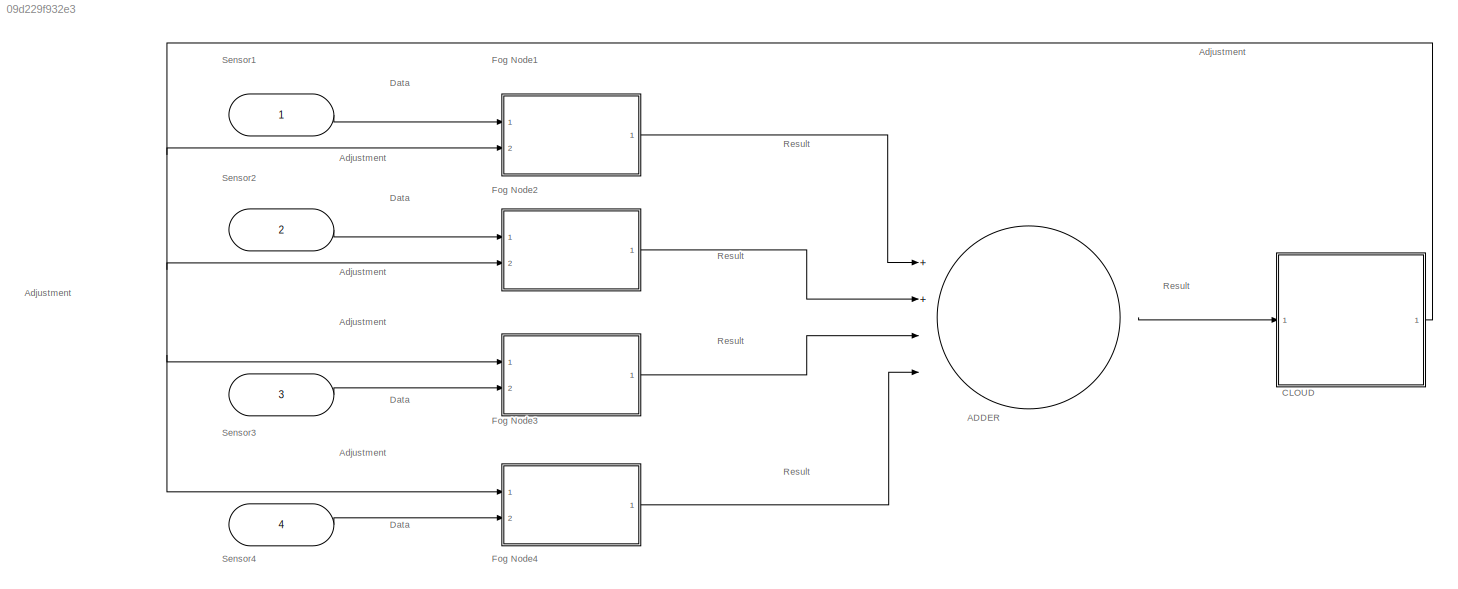
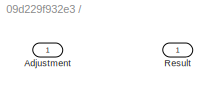
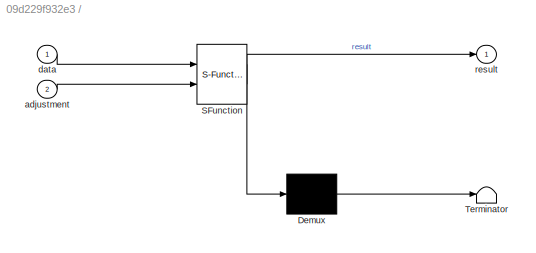
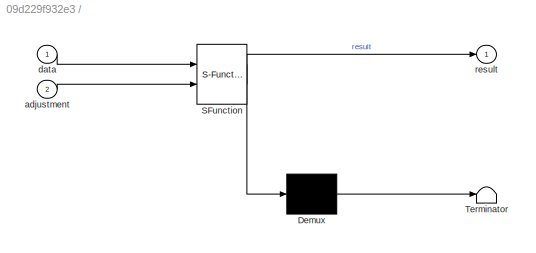
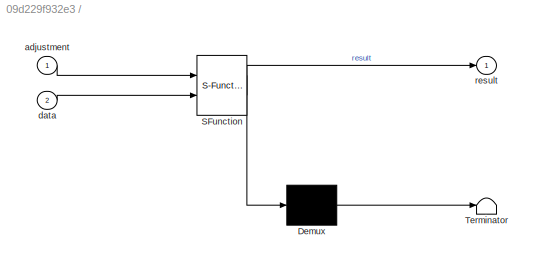
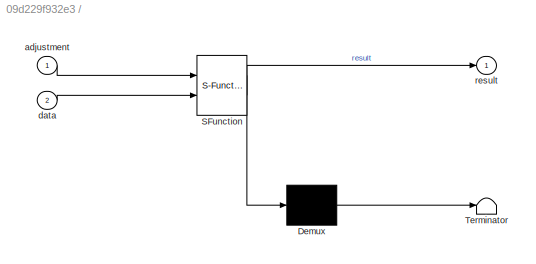
MODEL slx_09d229f932e3
KIND model
CONFIG AbsTol = auto
CONFIG EnableMultiTasking = off
CONFIG FixedStep = auto
CONFIG MaxStep = auto
CONFIG MinStep = auto
CONFIG RelTol = 1e-3
CONFIG SampleTimeConstraint = Unconstrained
CONFIG Solver = VariableStepAuto
CONFIG SolverName = VariableStepAuto
CONFIG StartTime = 0.0
CONFIG StopTime = 10.0
BLOCK [SubSystem]  
  ErrorFcn = Stateflow.Translate.translate
  PermitHierarchicalResolution = ExplicitOnly
  Ports = [2, 1]
  RequestExecContextInheritance = off
  SFBlockType = MATLAB Function
  TreatAsAtomicUnit = on
  Variant = off
BLOCK [SubSystem]       
  ErrorFcn = Stateflow.Translate.translate
  PermitHierarchicalResolution = ExplicitOnly
  Ports = [2, 1]
  RequestExecContextInheritance = off
  SFBlockType = MATLAB Function
  TreatAsAtomicUnit = on
  Variant = off
BLOCK [SubSystem]          
  ErrorFcn = Stateflow.Translate.translate
  PermitHierarchicalResolution = ExplicitOnly
  Ports = [2, 1]
  RequestExecContextInheritance = off
  SFBlockType = MATLAB Function
  TreatAsAtomicUnit = on
  Variant = off
BLOCK [SubSystem]              
  ErrorFcn = Stateflow.Translate.translate
  PermitHierarchicalResolution = ExplicitOnly
  Ports = [2, 1]
  RequestExecContextInheritance = off
  SFBlockType = MATLAB Function
  TreatAsAtomicUnit = on
  Variant = off
BLOCK [Inport]                                           
  IconDisplay = Port number
BLOCK [Inport]                                               
  IconDisplay = Port number
  Port = 3
BLOCK [Demux]              / Demux 
  Outputs = 1
  Ports = [1, 1]
BLOCK [S-Function]              / SFunction 
  EnableBusSupport = off
  FunctionName = sf_sfun
  PortCounts = [2 2]
  Ports = [2, 2]
  SFcnIsStateOwnerBlock = off
  SFunctionDeploymentMode = off
  Tag = Stateflow S-Function simulink_1 4
BLOCK [Terminator]              / Terminator 
BLOCK [Inport]              /adjustment
  IconDisplay = Port number
BLOCK [Inport]              /data
  IconDisplay = Port number
  Port = 2
BLOCK [Outport]              /result
  IconDisplay = Port number
BLOCK [Demux]          / Demux 
  Outputs = 1
  Ports = [1, 1]
BLOCK [S-Function]          / SFunction 
  EnableBusSupport = off
  FunctionName = sf_sfun
  PortCounts = [2 2]
  Ports = [2, 2]
  SFcnIsStateOwnerBlock = off
  SFunctionDeploymentMode = off
  Tag = Stateflow S-Function simulink_1 3
BLOCK [Terminator]          / Terminator 
BLOCK [Inport]          /adjustment
  IconDisplay = Port number
BLOCK [Inport]          /data
  IconDisplay = Port number
  Port = 2
BLOCK [Outport]          /result
  IconDisplay = Port number
BLOCK [Demux]       / Demux 
  Outputs = 1
  Ports = [1, 1]
BLOCK [S-Function]       / SFunction 
  EnableBusSupport = off
  FunctionName = sf_sfun
  PortCounts = [2 2]
  Ports = [2, 2]
  SFcnIsStateOwnerBlock = off
  SFunctionDeploymentMode = off
  Tag = Stateflow S-Function simulink_1 1
BLOCK [Terminator]       / Terminator 
BLOCK [Inport]       /adjustment
  IconDisplay = Port number
  Port = 2
BLOCK [Inport]       /data
  IconDisplay = Port number
BLOCK [Outport]       /result
  IconDisplay = Port number
BLOCK [Demux]  / Demux 
  Outputs = 1
  Ports = [1, 1]
BLOCK [S-Function]  / SFunction 
  EnableBusSupport = off
  FunctionName = sf_sfun
  PortCounts = [2 2]
  Ports = [2, 2]
  SFcnIsStateOwnerBlock = off
  SFunctionDeploymentMode = off
  Tag = Stateflow S-Function simulink_1 2
BLOCK [Terminator]  / Terminator 
BLOCK [Outport]  /Adjustment
  IconDisplay = Port number
BLOCK [Inport]  /Result
  IconDisplay = Port number
BLOCK [Inport]  /adjustment
  IconDisplay = Port number
  Port = 2
BLOCK [Inport]  /data
  IconDisplay = Port number
BLOCK [Outport]  /result
  IconDisplay = Port number
ANNOTATION (root): Adjustment
ANNOTATION (root): Data
ANNOTATION (root): Fog Node1
ANNOTATION (root): Fog Node2
ANNOTATION (root): Fog Node3
ANNOTATION (root): Fog Node4
ANNOTATION (root): Sensor1
ANNOTATION (root): Sensor2
ANNOTATION (root): Sensor3
ANNOTATION (root): Sensor4
ANNOTATION (root): Result
ANNOTATION (root): ADDER
ANNOTATION (root): CLOUD
LINE                                               :1 ->          :2
LINE                                           :1 ->  :1
LINE              :1 ->  :4
LINE          :1 ->  :3
LINE       :1 ->  :2
NET  :1 ->              :1,              :2,          :1,       :1,       :2,  :1,  :2
note: NET lines group one-source signal fan-out (src -> all destinations, sorted); 1:1 wires keep LINE
CHART        states=1 transitions=1
  STATE_LABEL 'eML_blk_kernel()'
  STATE_LABEL 'SCRIPT:\nfunction result = fcn(data,adjustment)\n\nresult= data;\n'
CHART    
 states=1 transitions=1
  STATE_LABEL 'eML_blk_kernel()'
  STATE_LABEL 'SCRIPT:\nfunction result = fcn(data,adjustment)\n\nresult= data;\n'
CHART           states=1 transitions=1
  STATE_LABEL 'eML_blk_kernel()'
  STATE_LABEL 'SCRIPT:\nfunction result = fcn(adjustment,data)\n\nresult= data;\n'
CHART               states=1 transitions=1
  STATE_LABEL 'eML_blk_kernel()'
  STATE_LABEL 'SCRIPT:\nfunction result = fcn(adjustment,data)\n\nresult= data;\n'
